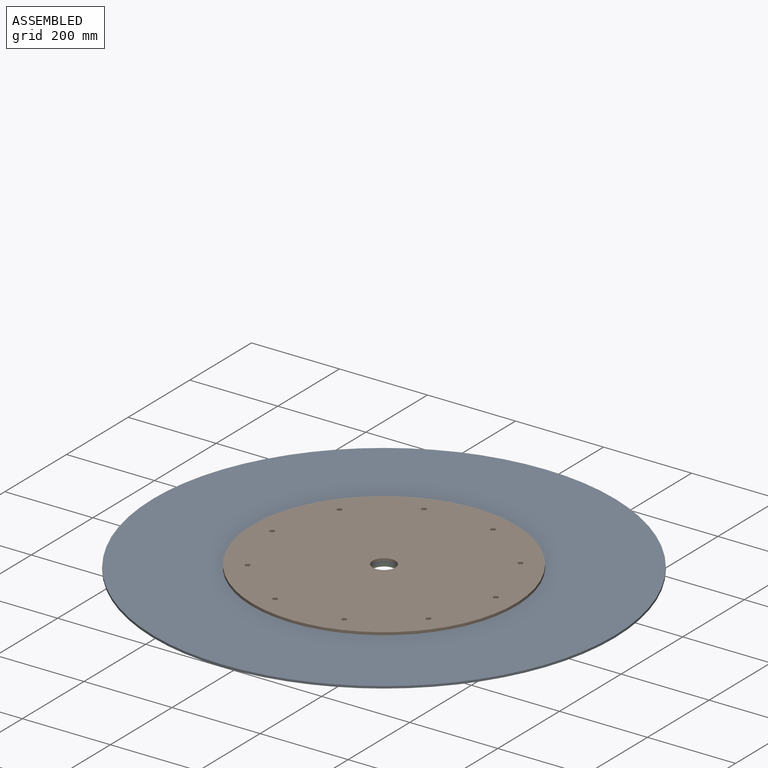
[diagram: assembled view]
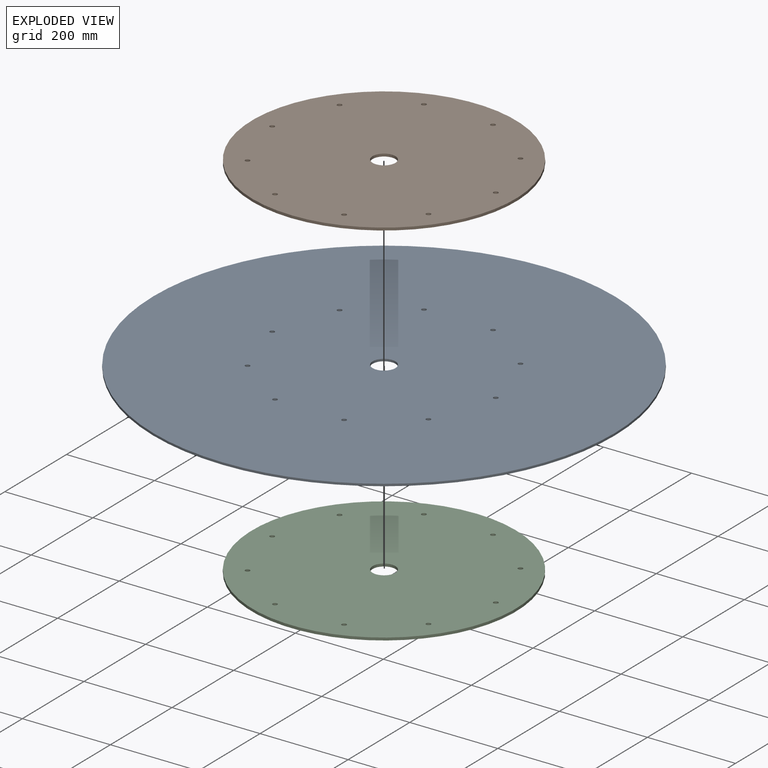
[diagram: exploded view]
GUIDED TOUR — MATED ASSEMBLY (Onshape document 6525b66c9d91d7f56e521c01, AutoMate assembly 6525b66c9d91d7f56e521c01_1eb1fe5b96e82b53b29523c1_890b653b093971ae60419764_default)

This assembly has 3 components, labeled P0..P2 below (a component is one placed occurrence of a part; the same part can appear more than once), held together by 4 mates. A mate is a constraint between two components; its type names the relative motion it leaves free:
  PIN_SLOT — leaves rotation about the listed axis plus translation along a slot free,
  REVOLUTE — leaves rotation about the listed axis free (a hinge).
Axis/direction vectors are unit vectors and 'through' points are millimeter coordinates, both in the assembly's world frame.

MATES
  1. PIN_SLOT "Pin slot 1": P0 <-> P1, axis (0.000, 0.000, 1.000) through (-177.97, 185.81, -9.78) mm
  2. REVOLUTE "Revolute 2": P2 <-> P0, axis (0.000, 0.000, 1.000) through (-99.48, -55.76, -14.78) mm
  3. REVOLUTE "Revolute 1": P1 <-> P0, axis (0.000, 0.000, -1.000) through (-99.48, -55.76, -6.78) mm
  4. REVOLUTE "Revolute 3": P0 <-> P2, axis (0.000, 0.000, -1.000) through (106.01, 93.54, -14.78) mm

ASSEMBLY ORDER
  1. P2 — the base component [order verified]
  2. P0 [order verified]
  3. P1 [order verified]
Order-tag legend:
  [order verified] — this step's position reverses a verified removal order: the component was checked to insert without passing through the ones already placed.

Of the 3 components, 3 carry the full construction recipe — the FeatureScript program that regenerates the part's solid from scratch; the rest are supplied as boundary geometry only.
Each toured component is shown spotlighted twice — in the assembled view, then in the exploded view, where a leader line traces a displaced component back to its assembled socket (saturated green if recipe-attached, orange if geometry-only; every other component desaturated gray) — followed by its recipe or geometry summary and the mates that hold it.
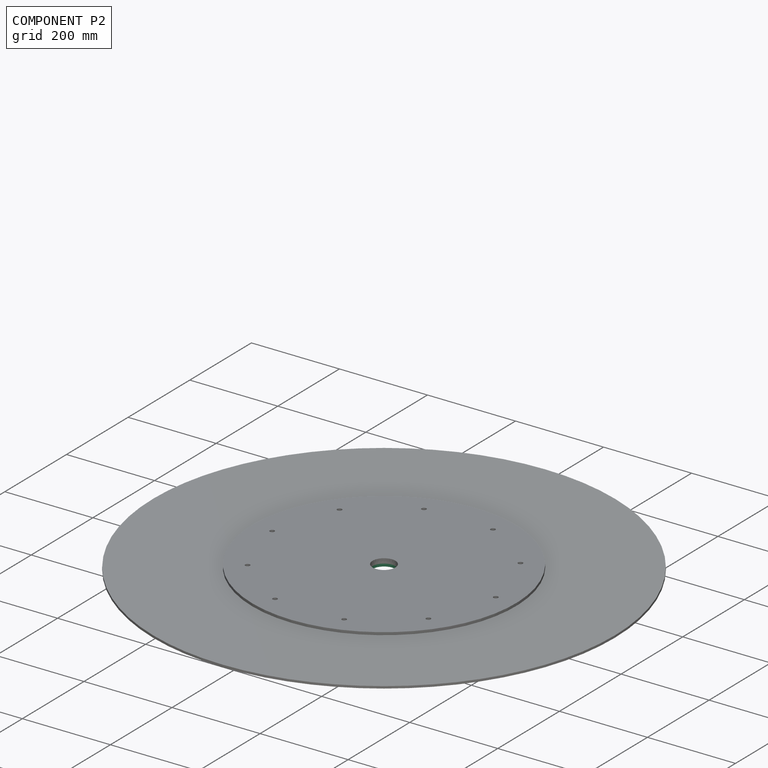
[diagram: component P2 — assembled]
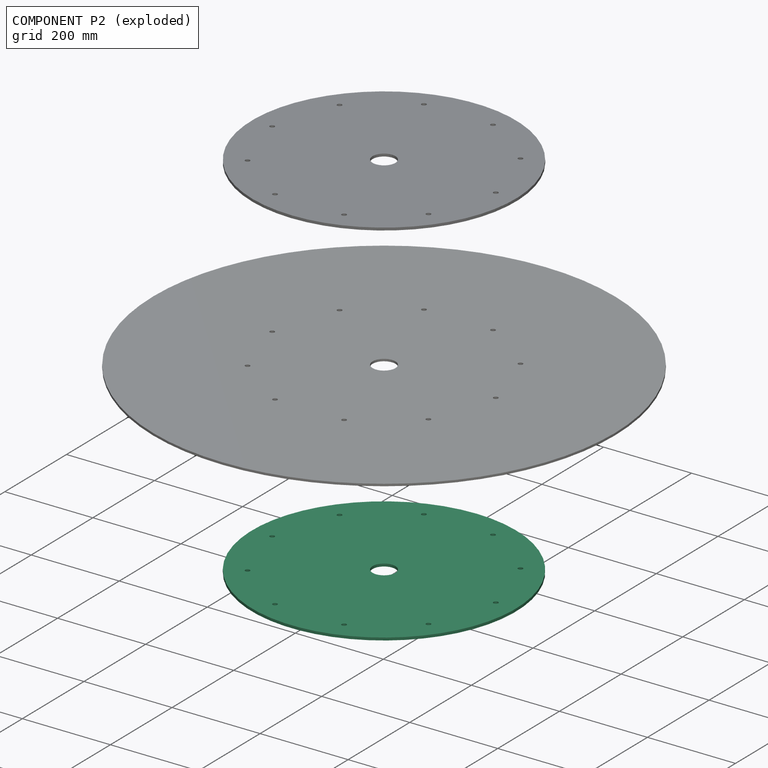
[diagram: component P2 — exploded]
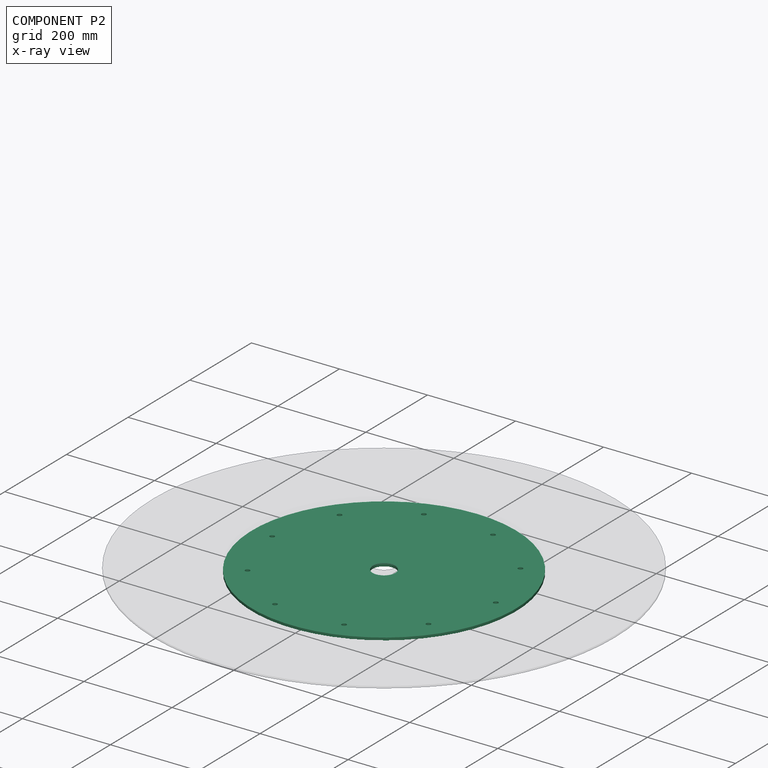
[diagram: component P2 — x-ray view]
COMPONENT P2 — same part as P1 (CADFS 00557500); its construction recipe is shown at P1.
Held by: REVOLUTE mate "Revolute 2" to P0; REVOLUTE mate "Revolute 3" to P0.
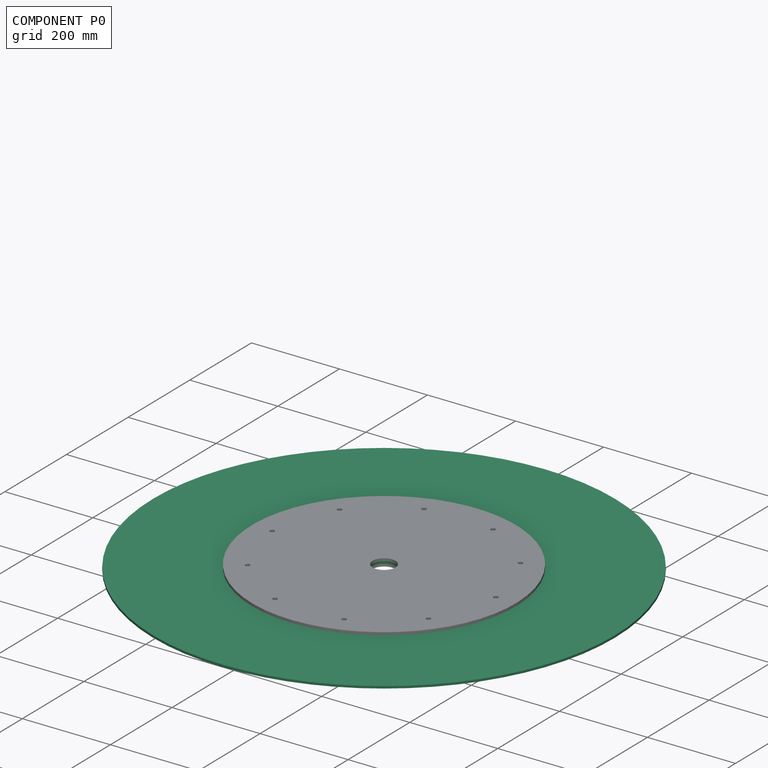
[diagram: component P0 — assembled]
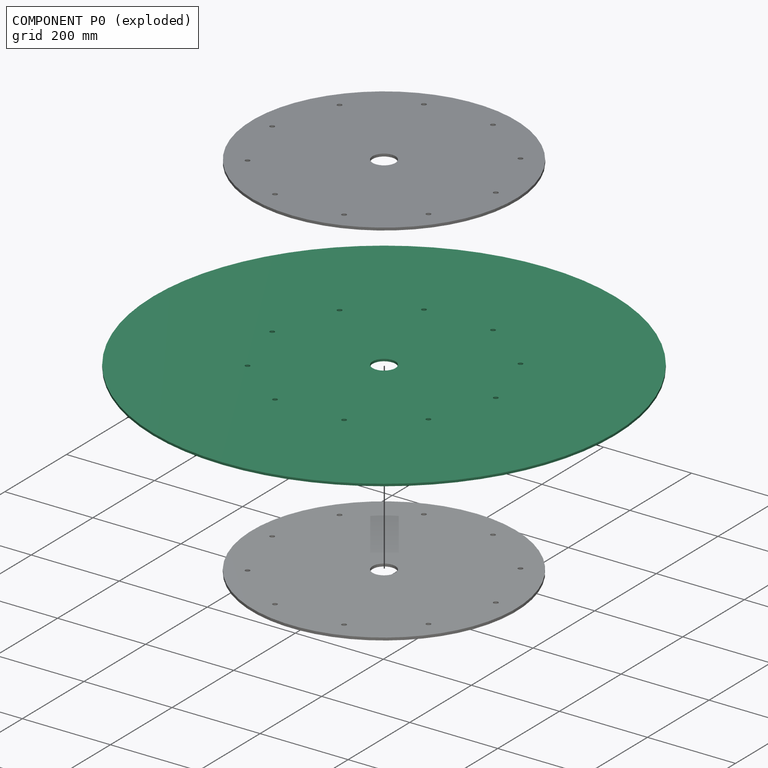
[diagram: component P0 — exploded]
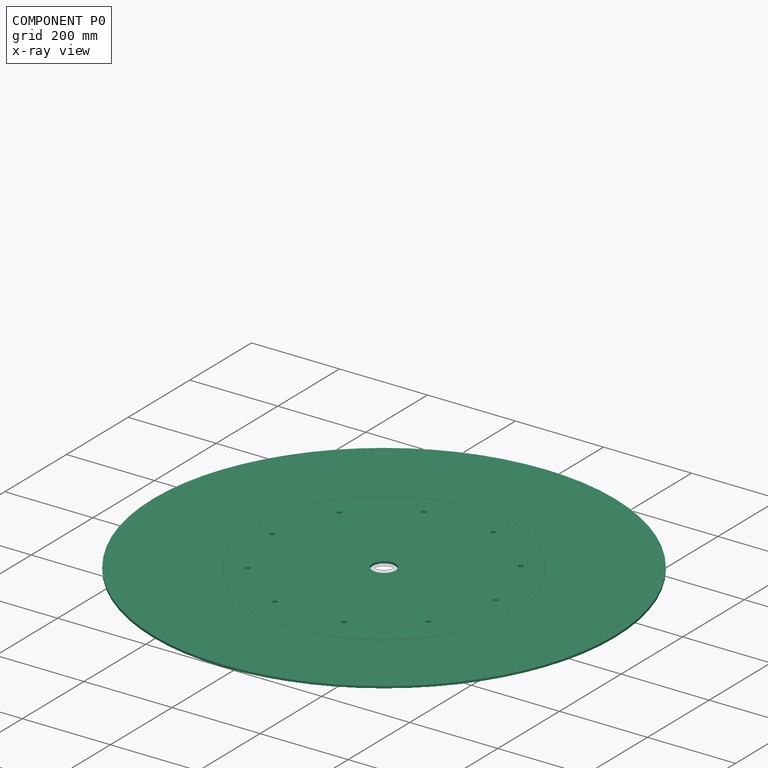
[diagram: component P0 — x-ray view]
COMPONENT P0 — recipe-attached (CADFS 00557499, mesh-verified: the recipe's output STEP matches this component's geometry to below the mesh-comparison resolution (tessellation chordal tolerance ~2.23 mm)).
Held by: PIN_SLOT mate "Pin slot 1" to P1; REVOLUTE mate "Revolute 2" to P2; REVOLUTE mate "Revolute 1" to P1; REVOLUTE mate "Revolute 3" to P2.
Construction recipe (FeatureScript — the CAD program that rebuilds this solid; sketch coordinates are in the units given by the * unit suffixes, e.g. mm):

FeatureScript 1511;
import(path : "onshape/std/geometry.fs", version : "1511.0");
import(path : "onshape/std/common.fs", version : "1511.0");
const mm = millimeter;
const VERTEX = EntityType.VERTEX;
const EDGE = EntityType.EDGE;
const FACE = EntityType.FACE;
const BODY = EntityType.BODY;
function v(x, y){return vector(x, y);}
function OD(order){return orderDisambiguation(order);}
function OSD(set){return originalSetDisambiguation(set);}
function TD(topology){return topologyDisambiguation(topology);}
function TDD(query){return trueDependencyDisambiguation(query);}
function sQuery(a, b, c) {return sketchEntityQuery(a, b, c);}

annotation { "Feature Type Name" : "Feature", "Feature Type Description" : "" }
export const myFeature = defineFeature(function(context is Context, id is Id, definition is map)
    precondition{}
    {
        {
            var Q0;
            Q0=qCreatedBy(makeId("Top.planeOp"),FACE);
            var sketch = newSketch(context, id + "F0", { "sketchPlane" : qUnion([Q0])});
            skCircle(sketch, "E0", {"center": v(0, 0) * mm, "radius": 524.5 * mm});
            skCircle(sketch, "E1", {"center": v(0, 0) * mm, "radius": 26 * mm});
            skCircle(sketch, "E2", {"center": v(0, 0) * mm, "radius": 254 * mm, "construction": true});
            skCircle(sketch, "E3", {"center": v(254, 0) * mm, "radius": 5.25 * mm});
            skCircle(sketch, "E4.1.0", {"center": v(205.5, 149.3) * mm, "radius": 5.25 * mm});
            skCircle(sketch, "E4.2.0", {"center": v(78.5, 241.57) * mm, "radius": 5.25 * mm});
            skCircle(sketch, "E4.3.0", {"center": v(-78.5, 241.57) * mm, "radius": 5.25 * mm});
            skCircle(sketch, "E4.4.0", {"center": v(-205.5, 149.3) * mm, "radius": 5.25 * mm});
            skCircle(sketch, "E4.5.0", {"center": v(-254, 0) * mm, "radius": 5.25 * mm});
            skCircle(sketch, "E4.6.0", {"center": v(-205.5, -149.3) * mm, "radius": 5.25 * mm});
            skCircle(sketch, "E4.7.0", {"center": v(-78.5, -241.57) * mm, "radius": 5.25 * mm});
            skCircle(sketch, "E4.8.0", {"center": v(78.5, -241.57) * mm, "radius": 5.25 * mm});
            skCircle(sketch, "E4.9.0", {"center": v(205.5, -149.3) * mm, "radius": 5.25 * mm});
            skSolve(sketch);
        }
        {
            var Q0;
            Q0=makeQuery(id+"F0.imprint","IMPRINT",FACE,{"disambiguationData":[TD([[makeQuery(id+"F0.imprint","IMPRINT",EDGE,{"derivedFrom":sQuery(id+"F0.wireOp",EDGE,"E0")}),1.0]])]});
            extrude(context, id + "F1", {"entities" : qUnion([Q0]), "depth" : 5 * mm, "offsetDistance" : 25 * mm});
        }
    });
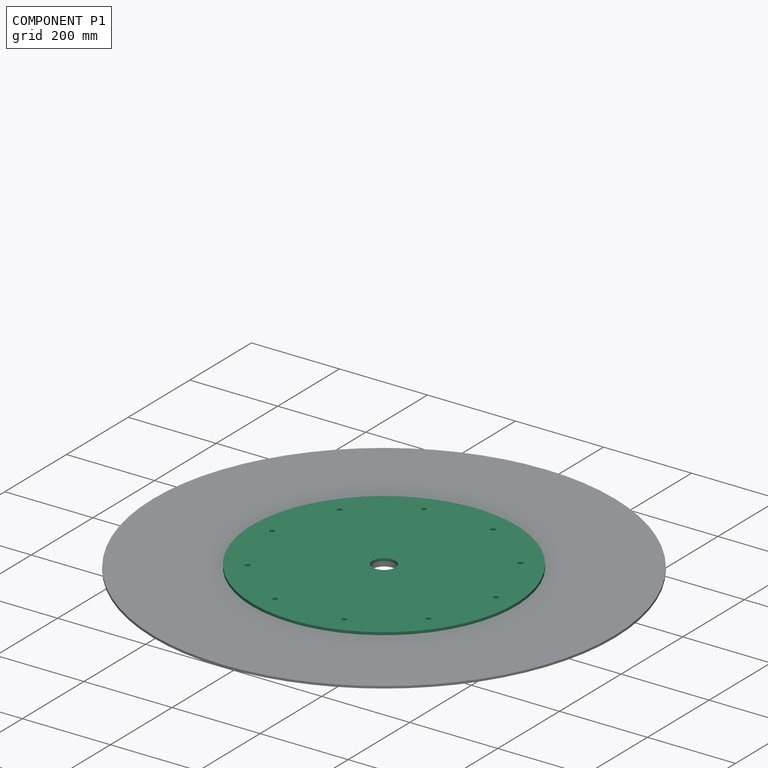
[diagram: component P1 — assembled]
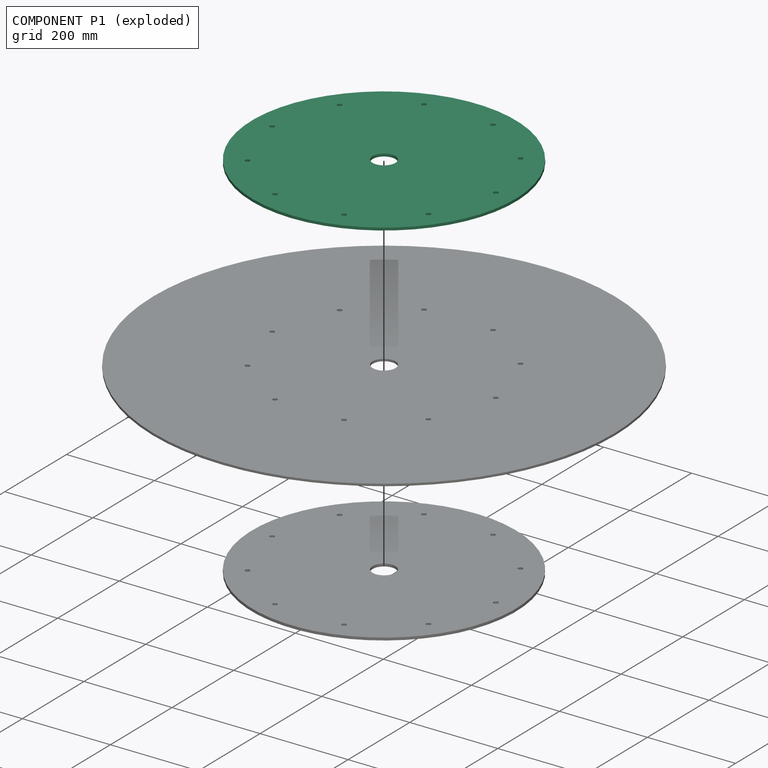
[diagram: component P1 — exploded]
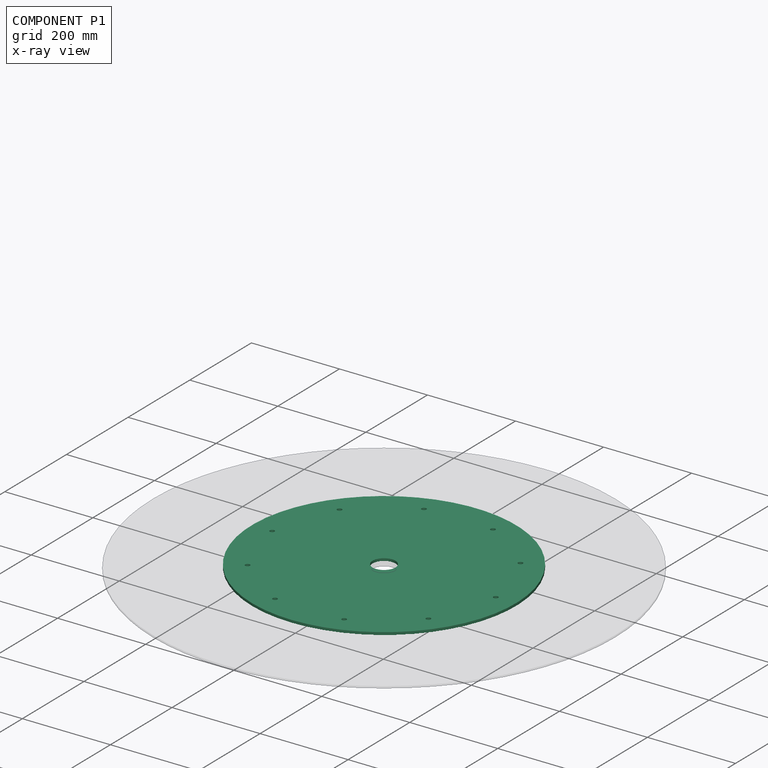
[diagram: component P1 — x-ray view]
COMPONENT P1 — recipe-attached (CADFS 00557500, mesh-verified: the recipe's output STEP matches this component's geometry to below the mesh-comparison resolution (tessellation chordal tolerance ~1.27 mm)).
Held by: PIN_SLOT mate "Pin slot 1" to P0; REVOLUTE mate "Revolute 1" to P0.
Construction recipe (FeatureScript — the CAD program that rebuilds this solid; sketch coordinates are in the units given by the * unit suffixes, e.g. mm):

FeatureScript 1511;
import(path : "onshape/std/geometry.fs", version : "1511.0");
import(path : "onshape/std/common.fs", version : "1511.0");
const mm = millimeter;
const VERTEX = EntityType.VERTEX;
const EDGE = EntityType.EDGE;
const FACE = EntityType.FACE;
const BODY = EntityType.BODY;
function v(x, y){return vector(x, y);}
function OD(order){return orderDisambiguation(order);}
function OSD(set){return originalSetDisambiguation(set);}
function TD(topology){return topologyDisambiguation(topology);}
function TDD(query){return trueDependencyDisambiguation(query);}
function sQuery(a, b, c) {return sketchEntityQuery(a, b, c);}

annotation { "Feature Type Name" : "Feature", "Feature Type Description" : "" }
export const myFeature = defineFeature(function(context is Context, id is Id, definition is map)
    precondition{}
    {
        {
            var Q0;
            Q0=qCreatedBy(makeId("Top.planeOp"),FACE);
            var sketch = newSketch(context, id + "F0", { "sketchPlane" : qUnion([Q0])});
            skCircle(sketch, "E0", {"center": v(0, 0) * mm, "radius": 300 * mm});
            skCircle(sketch, "E1", {"center": v(0, 0) * mm, "radius": 26 * mm});
            skCircle(sketch, "E2", {"center": v(0, 0) * mm, "radius": 254 * mm, "construction": true});
            skCircle(sketch, "E3", {"center": v(0, 254) * mm, "radius": 5.25 * mm});
            skCircle(sketch, "E4.1.0", {"center": v(-149.3, 205.5) * mm, "radius": 5.25 * mm});
            skCircle(sketch, "E4.2.0", {"center": v(-241.57, 78.5) * mm, "radius": 5.25 * mm});
            skCircle(sketch, "E4.3.0", {"center": v(-241.57, -78.5) * mm, "radius": 5.25 * mm});
            skCircle(sketch, "E4.4.0", {"center": v(-149.3, -205.5) * mm, "radius": 5.25 * mm});
            skCircle(sketch, "E4.5.0", {"center": v(0, -254) * mm, "radius": 5.25 * mm});
            skCircle(sketch, "E4.6.0", {"center": v(149.3, -205.5) * mm, "radius": 5.25 * mm});
            skCircle(sketch, "E4.7.0", {"center": v(241.57, -78.5) * mm, "radius": 5.25 * mm});
            skCircle(sketch, "E4.8.0", {"center": v(241.57, 78.5) * mm, "radius": 5.25 * mm});
            skCircle(sketch, "E4.9.0", {"center": v(149.3, 205.5) * mm, "radius": 5.25 * mm});
            skSolve(sketch);
        }
        {
            var Q0;
            Q0=makeQuery(id+"F0.imprint","IMPRINT",FACE,{"disambiguationData":[TD([[makeQuery(id+"F0.imprint","IMPRINT",EDGE,{"derivedFrom":sQuery(id+"F0.wireOp",EDGE,"E0")}),1.0]])]});
            extrude(context, id + "F1", {"entities" : qUnion([Q0]), "depth" : 6 * mm, "offsetDistance" : 25 * mm});
        }
    });
PROVENANCE & LICENSES
Assembly (occurrences, transforms, mates, per-part STEP geometry): AutoMate dataset, Zenodo record 7776208, CC0.
Construction recipes: CADFS (HuggingFace VladPyatov/CADFS, CC-BY-4.0, layered over the ABC dataset), FeatureScript reconstruction programs keyed by ABC model id.
Join: ABC meta listings map ABC model id -> Onshape documentId; within a shared document, parts are matched by geometric signature (bounding-box dims + volume at 0.1% relative tolerance, exact B-rep face/solid counts).
Verification: 3 of this assembly's 3 components carry a recipe attachment, and every attachment is mesh-verified: the CADFS STEP and the AutoMate member STEP were compared as meshes in their shared local frame (symmetric sampled-point-to-mesh distance); worst across the 3 attachments: below the mesh-comparison resolution (tessellation chordal tolerance ~2.23 mm) on a 1484 mm part.
Renders: orthographic iso camera (az 35 / el 25); the floor grid conveys scale (grid pitch printed in each image; no ruler). In the exploded view each component is displaced by its stored offset vector: the offsets alone carry the explosion direction (mate normal/axis signs are not orientation cues and do not encode it), and separation distances are assigned per mate-chain, not proportionally to assembly-order depth.
